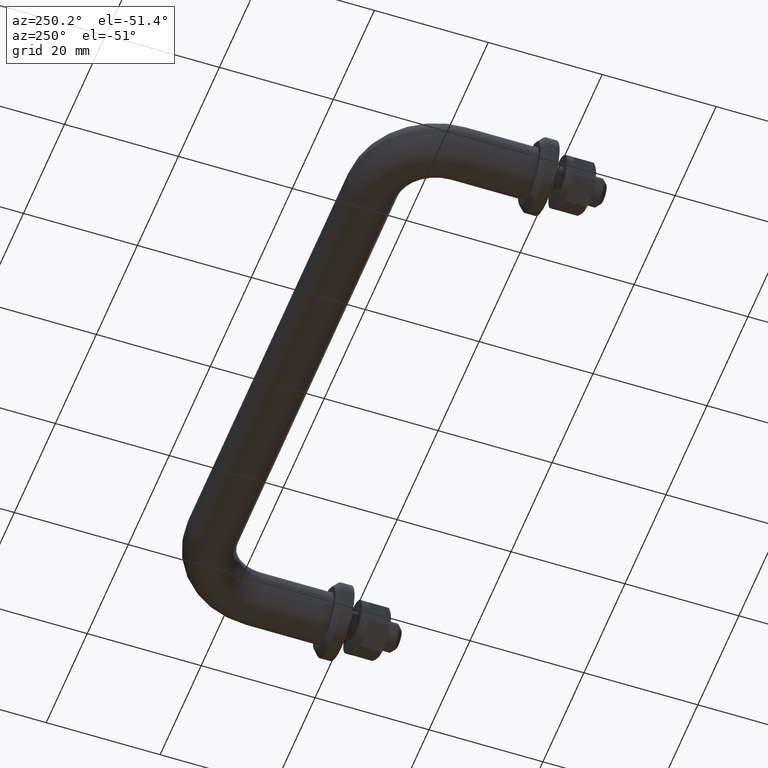
[diagram: clean part render]
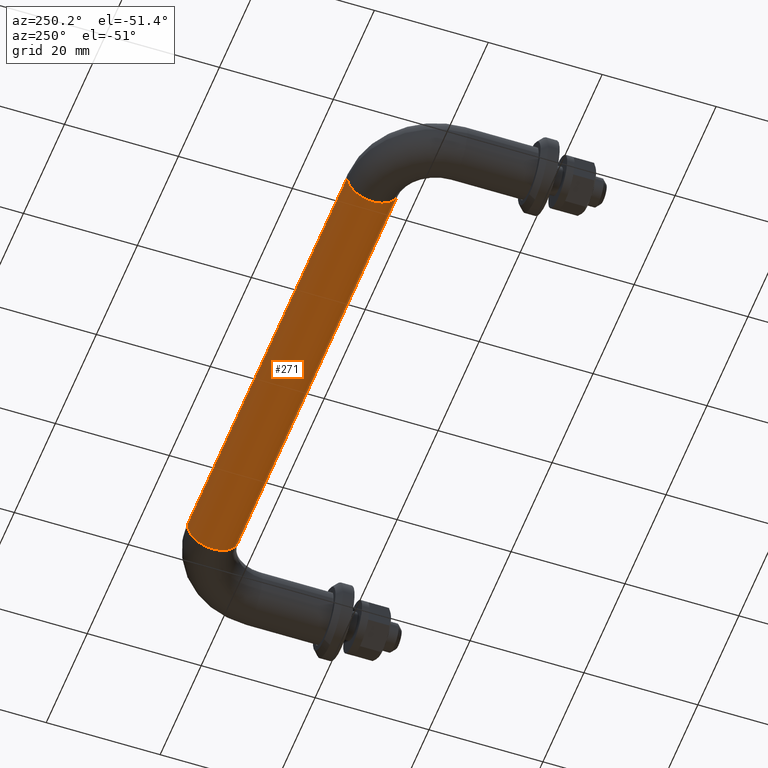
[diagram: same view with one face highlighted and labeled with its STEP entity id]
A machine part, auxiliary view. The second image highlights one B-rep face of the part: STEP entity #271.
In plain terms, the highlighted cylindrical surface (edge-blend (fillet) strip) has radius 4.5 mm, axis along (1, 0, 0).
Its self-contained STEP definition (entity closure, byte-faithful):
#69 = DIRECTION ( 'NONE',  ( 1.000000000000000000, -3.828568698926949400E-016, 0.0000000000000000000 ) ) ;
#90 = DIRECTION ( 'NONE',  ( 0.0000000000000000000, 0.0000000000000000000, 1.000000000000000000 ) ) ;
#99 = EDGE_CURVE ( 'NONE', #903, #1364, #618, .T. ) ;
#271 = ADVANCED_FACE ( 'NONE', ( #1510 ), #1416, .T. ) ;
#287 = CARTESIAN_POINT ( 'NONE',  ( 39.00000000000002100, 21.00000000000001400, 5.510910596163087600E-016 ) ) ;
#491 = AXIS2_PLACEMENT_3D ( 'NONE', #1017, #1144, #1550 ) ;
#519 = ORIENTED_EDGE ( 'NONE', *, *, #1139, .T. ) ;
#618 = LINE ( 'NONE', #1094, #945 ) ;
#643 = DIRECTION ( 'NONE',  ( 1.000000000000000000, 1.334402673828312800E-016, 0.0000000000000000000 ) ) ;
#648 = ORIENTED_EDGE ( 'NONE', *, *, #1386, .F. ) ;
#666 = VERTEX_POINT ( 'NONE', #1152 ) ;
#806 = ORIENTED_EDGE ( 'NONE', *, *, #1628, .F. ) ;
#899 = CARTESIAN_POINT ( 'NONE',  ( 39.00000000000002100, 25.50000000000001100, 0.0000000000000000000 ) ) ;
#903 = VERTEX_POINT ( 'NONE', #1290 ) ;
#938 = VECTOR ( 'NONE', #1712, 1000.000000000000000 ) ;
#945 = VECTOR ( 'NONE', #954, 1000.000000000000000 ) ;
#949 = DIRECTION ( 'NONE',  ( 0.0000000000000000000, 1.000000000000000000, 0.0000000000000000000 ) ) ;
#954 = DIRECTION ( 'NONE',  ( 1.000000000000000000, 1.334402673828312800E-016, 0.0000000000000000000 ) ) ;
#980 = LINE ( 'NONE', #1300, #938 ) ;
#1017 = CARTESIAN_POINT ( 'NONE',  ( -38.99999999999999300, 25.50000000000000400, 0.0000000000000000000 ) ) ;
#1094 = CARTESIAN_POINT ( 'NONE',  ( -38.99999999999999300, 30.00000000000000000, 0.0000000000000000000 ) ) ;
#1139 = EDGE_CURVE ( 'NONE', #666, #903, #1154, .T. ) ;
#1144 = DIRECTION ( 'NONE',  ( 1.000000000000000000, -3.828568698926949400E-016, 0.0000000000000000000 ) ) ;
#1152 = CARTESIAN_POINT ( 'NONE',  ( -38.99999999999999300, 21.00000000000000400, 5.510910596163096500E-016 ) ) ;
#1154 = CIRCLE ( 'NONE', #491, 4.499999999999998200 ) ;
#1261 = AXIS2_PLACEMENT_3D ( 'NONE', #899, #69, #90 ) ;
#1287 = CIRCLE ( 'NONE', #1261, 4.499999999999998200 ) ;
#1290 = CARTESIAN_POINT ( 'NONE',  ( -38.99999999999999300, 30.00000000000000000, 0.0000000000000000000 ) ) ;
#1300 = CARTESIAN_POINT ( 'NONE',  ( -38.99999999999999300, 21.00000000000000400, 5.510910596163086600E-016 ) ) ;
#1364 = VERTEX_POINT ( 'NONE', #1453 ) ;
#1386 = EDGE_CURVE ( 'NONE', #666, #1521, #980, .T. ) ;
#1416 = CYLINDRICAL_SURFACE ( 'NONE', #1475, 4.499999999999997300 ) ;
#1453 = CARTESIAN_POINT ( 'NONE',  ( 39.00000000000002100, 30.00000000000001100, 0.0000000000000000000 ) ) ;
#1475 = AXIS2_PLACEMENT_3D ( 'NONE', #1501, #643, #949 ) ;
#1477 = EDGE_LOOP ( 'NONE', ( #648, #519, #1776, #806 ) ) ;
#1501 = CARTESIAN_POINT ( 'NONE',  ( -38.99999999999999300, 25.50000000000000400, 0.0000000000000000000 ) ) ;
#1510 = FACE_OUTER_BOUND ( 'NONE', #1477, .T. ) ;
#1521 = VERTEX_POINT ( 'NONE', #287 ) ;
#1550 = DIRECTION ( 'NONE',  ( 0.0000000000000000000, 0.0000000000000000000, 1.000000000000000000 ) ) ;
#1628 = EDGE_CURVE ( 'NONE', #1521, #1364, #1287, .T. ) ;
#1712 = DIRECTION ( 'NONE',  ( 1.000000000000000000, 1.334402673828312800E-016, 0.0000000000000000000 ) ) ;
#1776 = ORIENTED_EDGE ( 'NONE', *, *, #99, .T. ) ;